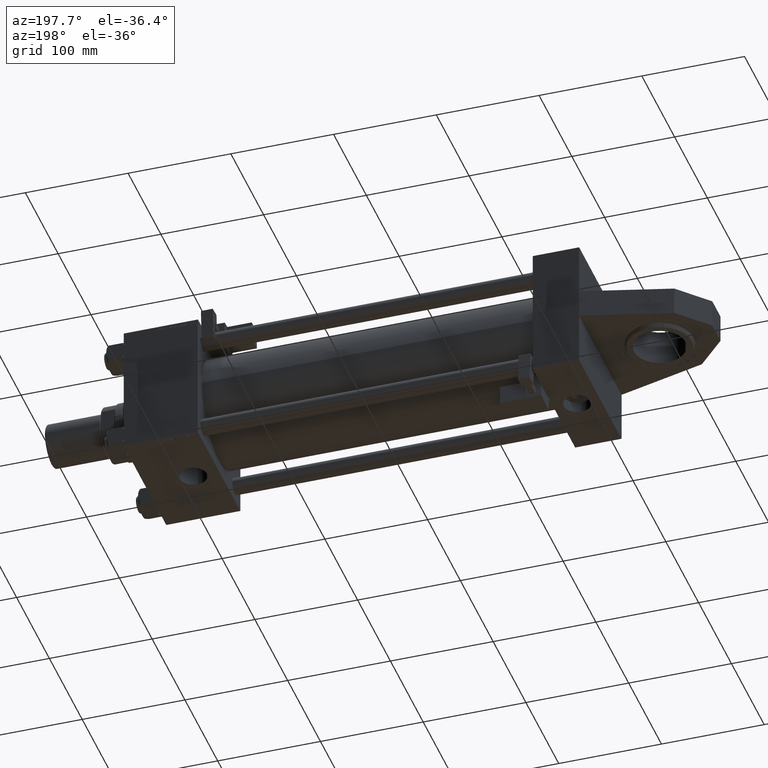
[diagram: clean part render]
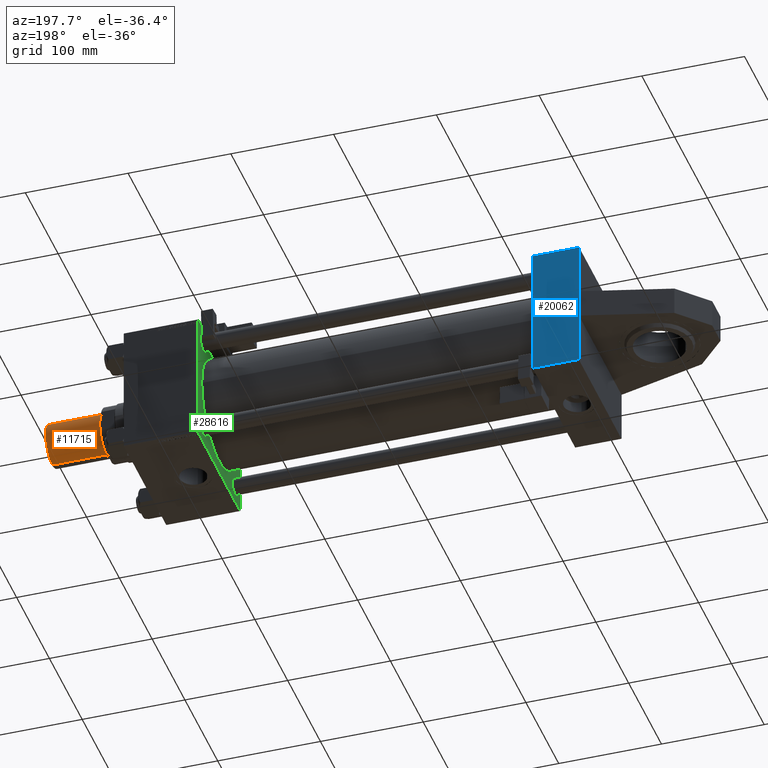
[diagram: same view with three faces highlighted in distinct colors, each labeled with its STEP entity id]
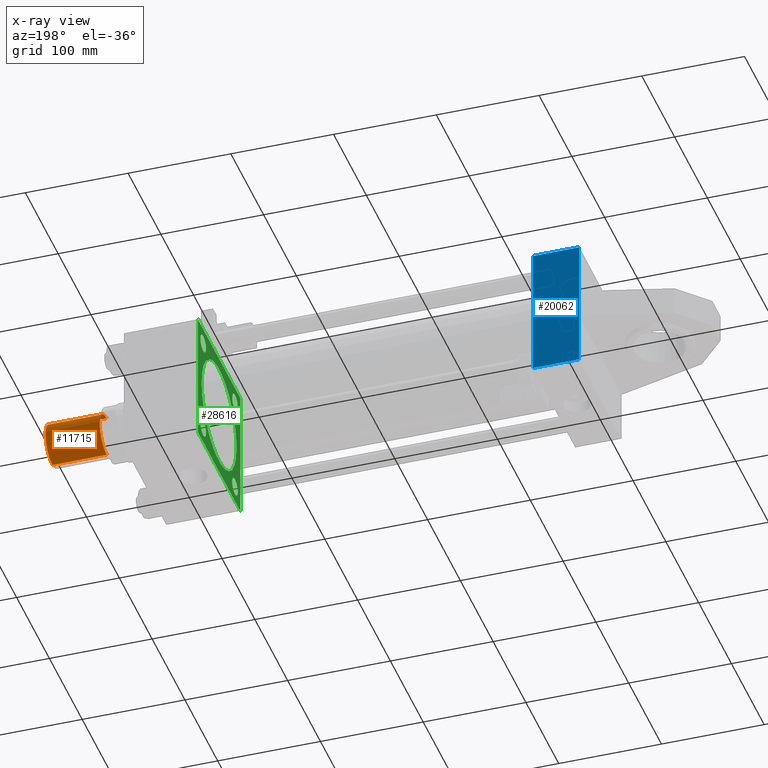
[diagram: x-ray of the same camera — body ghosted, the three highlighted faces saturated]
A machine part, auxiliary view with three faces highlighted in distinct colors.
The next image is the same camera in x-ray (body ghosted, the three faces saturated) — at least one of them is partly hidden behind the body in this view.
Their STEP definitions:

[orange] entity #11715 — the highlighted cylindrical surface (edge-blend (fillet) strip) has radius 21 mm, axis along (1, -0, -0).
#2862 = LINE ( 'NONE', #53823, #28830 ) ;
#5984 = DIRECTION ( 'NONE',  ( 0.000000000000000000, 0.000000000000000000, 1.000000000000000000 ) ) ;
#6260 = DIRECTION ( 'NONE',  ( 1.000000000000000000, 0.000000000000000000, 0.000000000000000000 ) ) ;
#10566 = ORIENTED_EDGE ( 'NONE', *, *, #54041, .F. ) ;
#11645 = ORIENTED_EDGE ( 'NONE', *, *, #49809, .F. ) ;
#11715 = ADVANCED_FACE ( 'NONE', ( #22678 ), #14840, .T. ) ;
#14840 = CYLINDRICAL_SURFACE ( 'NONE', #20367, 21.00000000000000000 ) ;
#15377 = CARTESIAN_POINT ( 'NONE',  ( 21.00000000000000000, 2.571758278209441661E-15, 53.50000000000000000 ) ) ;
#19028 = CARTESIAN_POINT ( 'NONE',  ( 0.000000000000000000, 0.000000000000000000, 53.50000000000000000 ) ) ;
#20367 = AXIS2_PLACEMENT_3D ( 'NONE', #19028, #31881, #35529 ) ;
#21229 = DIRECTION ( 'NONE',  ( 1.000000000000000000, 0.000000000000000000, 0.000000000000000000 ) ) ;
#22678 = FACE_OUTER_BOUND ( 'NONE', #35288, .T. ) ;
#22989 = EDGE_CURVE ( 'NONE', #28365, #42734, #25447, .T. ) ;
#23627 = ORIENTED_EDGE ( 'NONE', *, *, #22989, .T. ) ;
#24865 = DIRECTION ( 'NONE',  ( -0.000000000000000000, -0.000000000000000000, 1.000000000000000000 ) ) ;
#25447 = CIRCLE ( 'NONE', #31636, 21.00000000000000000 ) ;
#27929 = EDGE_CURVE ( 'NONE', #38815, #28365, #52485, .T. ) ;
#28365 = VERTEX_POINT ( 'NONE', #45379 ) ;
#28433 = VERTEX_POINT ( 'NONE', #54355 ) ;
#28830 = VECTOR ( 'NONE', #33071, 1000.000000000000000 ) ;
#30092 = VECTOR ( 'NONE', #51379, 1000.000000000000000 ) ;
#31636 = AXIS2_PLACEMENT_3D ( 'NONE', #41915, #24865, #21229 ) ;
#31881 = DIRECTION ( 'NONE',  ( -0.000000000000000000, -0.000000000000000000, -1.000000000000000000 ) ) ;
#33071 = DIRECTION ( 'NONE',  ( -0.000000000000000000, -0.000000000000000000, -1.000000000000000000 ) ) ;
#34286 = CARTESIAN_POINT ( 'NONE',  ( 21.00000000000000000, 2.571758278209441661E-15, 53.50000000000000000 ) ) ;
#35288 = EDGE_LOOP ( 'NONE', ( #10566, #38814, #23627, #11645 ) ) ;
#35529 = DIRECTION ( 'NONE',  ( -1.000000000000000000, 0.000000000000000000, 0.000000000000000000 ) ) ;
#38814 = ORIENTED_EDGE ( 'NONE', *, *, #27929, .T. ) ;
#38815 = VERTEX_POINT ( 'NONE', #15377 ) ;
#39297 = CARTESIAN_POINT ( 'NONE',  ( 0.000000000000000000, 0.000000000000000000, 53.50000000000000000 ) ) ;
#41915 = CARTESIAN_POINT ( 'NONE',  ( 0.000000000000000000, 0.000000000000000000, 0.7999999999999882760 ) ) ;
#42734 = VERTEX_POINT ( 'NONE', #46907 ) ;
#45379 = CARTESIAN_POINT ( 'NONE',  ( 21.00000000000000000, 2.571758278209441661E-15, 0.7999999999999882760 ) ) ;
#46907 = CARTESIAN_POINT ( 'NONE',  ( -21.00000000000000000, 0.000000000000000000, 0.7999999999999882760 ) ) ;
#48527 = AXIS2_PLACEMENT_3D ( 'NONE', #39297, #5984, #6260 ) ;
#49407 = CIRCLE ( 'NONE', #48527, 21.00000000000000000 ) ;
#49809 = EDGE_CURVE ( 'NONE', #28433, #42734, #2862, .T. ) ;
#51379 = DIRECTION ( 'NONE',  ( -0.000000000000000000, -0.000000000000000000, -1.000000000000000000 ) ) ;
#52485 = LINE ( 'NONE', #34286, #30092 ) ;
#53823 = CARTESIAN_POINT ( 'NONE',  ( -21.00000000000000000, 0.000000000000000000, 53.50000000000000000 ) ) ;
#54041 = EDGE_CURVE ( 'NONE', #38815, #28433, #49407, .T. ) ;
#54355 = CARTESIAN_POINT ( 'NONE',  ( -21.00000000000000000, 0.000000000000000000, 53.50000000000000000 ) ) ;

[blue] entity #20062 — the highlighted planar face has unit normal (0, 1, 0).
#98 = DIRECTION ( 'NONE',  ( 0.000000000000000000, 1.067522139062650548E-16, -1.000000000000000000 ) ) ;
#99 = VERTEX_POINT ( 'NONE', #22239 ) ;
#425 = VERTEX_POINT ( 'NONE', #21076 ) ;
#575 = CARTESIAN_POINT ( 'NONE',  ( 45.00000000000000000, 64.49999999999997158, -64.99999999999998579 ) ) ;
#2406 = EDGE_CURVE ( 'NONE', #43380, #22657, #34401, .T. ) ;
#2590 = EDGE_CURVE ( 'NONE', #47584, #99, #52327, .T. ) ;
#2837 = CARTESIAN_POINT ( 'NONE',  ( 0.000000000000000000, 65.00000000000000000, -64.99999999999998579 ) ) ;
#3897 = AXIS2_PLACEMENT_3D ( 'NONE', #9049, #98, #51599 ) ;
#4165 = CARTESIAN_POINT ( 'NONE',  ( 0.000000000000000000, -13.99999999999999822, -65.00000000000000000 ) ) ;
#5695 = ORIENTED_EDGE ( 'NONE', *, *, #31781, .F. ) ;
#5819 = LINE ( 'NONE', #27367, #29354 ) ;
#6583 = VECTOR ( 'NONE', #9778, 1000.000000000000000 ) ;
#8306 = VERTEX_POINT ( 'NONE', #8690 ) ;
#8690 = CARTESIAN_POINT ( 'NONE',  ( 0.000000000000000000, 14.00000000000000000, -65.00000000000000000 ) ) ;
#8785 = DIRECTION ( 'NONE',  ( 1.000000000000000000, 0.000000000000000000, 0.000000000000000000 ) ) ;
#9049 = CARTESIAN_POINT ( 'NONE',  ( 45.00000000000000000, 65.00000000000000000, -64.99999999999998579 ) ) ;
#9778 = DIRECTION ( 'NONE',  ( 0.000000000000000000, -1.000000000000000000, -1.067522139062650425E-16 ) ) ;
#11256 = LINE ( 'NONE', #2837, #12258 ) ;
#12258 = VECTOR ( 'NONE', #45939, 1000.000000000000000 ) ;
#12360 = EDGE_CURVE ( 'NONE', #99, #22657, #21182, .T. ) ;
#12980 = EDGE_CURVE ( 'NONE', #43380, #8306, #5819, .T. ) ;
#13153 = CARTESIAN_POINT ( 'NONE',  ( 0.000000000000000000, 65.00000000000000000, -64.99999999999998579 ) ) ;
#13982 = CARTESIAN_POINT ( 'NONE',  ( 45.00000000000000000, 65.00000000000000000, -64.99999999999998579 ) ) ;
#15909 = ORIENTED_EDGE ( 'NONE', *, *, #2406, .F. ) ;
#17733 = PLANE ( 'NONE',  #3897 ) ;
#18157 = VECTOR ( 'NONE', #8785, 1000.000000000000000 ) ;
#19991 = EDGE_CURVE ( 'NONE', #425, #47584, #28391, .T. ) ;
#20062 = ADVANCED_FACE ( 'NONE', ( #38986 ), #17733, .T. ) ;
#21076 = CARTESIAN_POINT ( 'NONE',  ( 0.000000000000000000, 64.49999999999997158, -64.99999999999998579 ) ) ;
#21182 = LINE ( 'NONE', #39051, #38265 ) ;
#22239 = CARTESIAN_POINT ( 'NONE',  ( 45.00000000000000000, -64.49999999999994316, -65.00000000000000000 ) ) ;
#22657 = VERTEX_POINT ( 'NONE', #22659 ) ;
#22659 = CARTESIAN_POINT ( 'NONE',  ( 0.000000000000000000, -64.49999999999994316, -65.00000000000000000 ) ) ;
#22898 = DIRECTION ( 'NONE',  ( 0.000000000000000000, 1.000000000000000000, 0.000000000000000000 ) ) ;
#27367 = CARTESIAN_POINT ( 'NONE',  ( 0.000000000000000000, -14.00000000000000000, -65.00000000000000000 ) ) ;
#28391 = LINE ( 'NONE', #28657, #18157 ) ;
#28657 = CARTESIAN_POINT ( 'NONE',  ( 45.00000000000000000, 64.49999999999997158, -64.99999999999998579 ) ) ;
#29354 = VECTOR ( 'NONE', #22898, 1000.000000000000000 ) ;
#29832 = VECTOR ( 'NONE', #30479, 1000.000000000000000 ) ;
#30479 = DIRECTION ( 'NONE',  ( 0.000000000000000000, -1.000000000000000000, -1.067522139062650425E-16 ) ) ;
#31781 = EDGE_CURVE ( 'NONE', #425, #8306, #11256, .T. ) ;
#34401 = LINE ( 'NONE', #13153, #29832 ) ;
#34719 = ORIENTED_EDGE ( 'NONE', *, *, #19991, .T. ) ;
#35176 = ORIENTED_EDGE ( 'NONE', *, *, #2590, .T. ) ;
#36738 = ORIENTED_EDGE ( 'NONE', *, *, #12360, .T. ) ;
#38265 = VECTOR ( 'NONE', #40149, 1000.000000000000000 ) ;
#38986 = FACE_OUTER_BOUND ( 'NONE', #39802, .T. ) ;
#39051 = CARTESIAN_POINT ( 'NONE',  ( 0.000000000000000000, -64.49999999999994316, -65.00000000000000000 ) ) ;
#39802 = EDGE_LOOP ( 'NONE', ( #5695, #34719, #35176, #36738, #15909, #53960 ) ) ;
#40149 = DIRECTION ( 'NONE',  ( -1.000000000000000000, 0.000000000000000000, 0.000000000000000000 ) ) ;
#43380 = VERTEX_POINT ( 'NONE', #4165 ) ;
#45939 = DIRECTION ( 'NONE',  ( 0.000000000000000000, -1.000000000000000000, -1.067522139062650425E-16 ) ) ;
#47584 = VERTEX_POINT ( 'NONE', #575 ) ;
#51599 = DIRECTION ( 'NONE',  ( 0.000000000000000000, 1.000000000000000000, 1.067522139062650548E-16 ) ) ;
#52327 = LINE ( 'NONE', #13982, #6583 ) ;
#53960 = ORIENTED_EDGE ( 'NONE', *, *, #12980, .T. ) ;

[green] entity #28616 — the highlighted planar face has unit normal (-1, 0, 0).
#79 = DIRECTION ( 'NONE',  ( 1.000000000000000000, -0.000000000000000000, 0.000000000000000000 ) ) ;
#485 = VECTOR ( 'NONE', #37633, 1000.000000000000000 ) ;
#505 = DIRECTION ( 'NONE',  ( 1.000000000000000000, -0.000000000000000000, 0.000000000000000000 ) ) ;
#658 = LINE ( 'NONE', #4858, #41897 ) ;
#848 = PLANE ( 'NONE',  #30135 ) ;
#1364 = CARTESIAN_POINT ( 'NONE',  ( 371.0000000000000000, -64.74999999999816680, -64.75000000000176215 ) ) ;
#1368 = CARTESIAN_POINT ( 'NONE',  ( 371.0000000000000000, 48.45000000000000995, -39.94999999999995310 ) ) ;
#1966 = VERTEX_POINT ( 'NONE', #55378 ) ;
#2070 = VERTEX_POINT ( 'NONE', #26242 ) ;
#2149 = CARTESIAN_POINT ( 'NONE',  ( 371.0000000000000000, 65.00000000000002842, 65.00000000000001421 ) ) ;
#2324 = VERTEX_POINT ( 'NONE', #49632 ) ;
#2623 = EDGE_LOOP ( 'NONE', ( #44089, #22794 ) ) ;
#3161 = ORIENTED_EDGE ( 'NONE', *, *, #31093, .F. ) ;
#3511 = DIRECTION ( 'NONE',  ( 0.000000000000000000, 0.000000000000000000, 1.000000000000000000 ) ) ;
#4018 = ORIENTED_EDGE ( 'NONE', *, *, #40375, .T. ) ;
#4065 = VECTOR ( 'NONE', #6118, 1000.000000000000000 ) ;
#4858 = CARTESIAN_POINT ( 'NONE',  ( 371.0000000000000000, 65.00000000000002842, -64.99999999999998579 ) ) ;
#5518 = LINE ( 'NONE', #2149, #49791 ) ;
#5728 = DIRECTION ( 'NONE',  ( 1.000000000000000000, 0.000000000000000000, 0.000000000000000000 ) ) ;
#6118 = DIRECTION ( 'NONE',  ( 0.000000000000000000, -0.7071067811865672237, 0.7071067811865279218 ) ) ;
#6263 = CIRCLE ( 'NONE', #45614, 53.00000000000000711 ) ;
#6677 = CARTESIAN_POINT ( 'NONE',  ( 371.0000000000000000, -64.99999999999998579, -64.49999999999997158 ) ) ;
#6906 = EDGE_CURVE ( 'NONE', #19677, #53902, #27108, .T. ) ;
#6961 = AXIS2_PLACEMENT_3D ( 'NONE', #28097, #31450, #44602 ) ;
#7134 = LINE ( 'NONE', #41252, #8234 ) ;
#7411 = DIRECTION ( 'NONE',  ( 0.000000000000000000, 0.7071067811865474617, -0.7071067811865474617 ) ) ;
#7910 = DIRECTION ( 'NONE',  ( 0.000000000000000000, 0.000000000000000000, 1.000000000000000000 ) ) ;
#7914 = DIRECTION ( 'NONE',  ( -0.000000000000000000, -0.7071067811865474617, -0.7071067811865474617 ) ) ;
#8164 = VERTEX_POINT ( 'NONE', #49848 ) ;
#8234 = VECTOR ( 'NONE', #7411, 1000.000000000000114 ) ;
#8705 = DIRECTION ( 'NONE',  ( 0.000000000000000000, 0.000000000000000000, 1.000000000000000000 ) ) ;
#10518 = CARTESIAN_POINT ( 'NONE',  ( 371.0000000000000000, -48.45000000000001705, -48.45000000000001705 ) ) ;
#10854 = CARTESIAN_POINT ( 'NONE',  ( 371.0000000000000000, 48.45000000000000995, -48.45000000000001705 ) ) ;
#11004 = CARTESIAN_POINT ( 'NONE',  ( 371.0000000000000000, -48.45000000000001705, -39.94999999999995310 ) ) ;
#11820 = AXIS2_PLACEMENT_3D ( 'NONE', #41842, #41558, #3511 ) ;
#11940 = LINE ( 'NONE', #12497, #52440 ) ;
#12057 = AXIS2_PLACEMENT_3D ( 'NONE', #38694, #79, #38966 ) ;
#12497 = CARTESIAN_POINT ( 'NONE',  ( 371.0000000000000000, 65.00000000000002842, 65.00000000000001421 ) ) ;
#13008 = AXIS2_PLACEMENT_3D ( 'NONE', #50539, #24785, #16393 ) ;
#14111 = CIRCLE ( 'NONE', #30206, 8.500000000000063949 ) ;
#14484 = VERTEX_POINT ( 'NONE', #46741 ) ;
#14999 = EDGE_CURVE ( 'NONE', #16043, #14484, #45750, .T. ) ;
#16043 = VERTEX_POINT ( 'NONE', #42691 ) ;
#16236 = VERTEX_POINT ( 'NONE', #16342 ) ;
#16305 = CARTESIAN_POINT ( 'NONE',  ( 371.0000000000000000, -2.602085213965210642E-15, 0.000000000000000000 ) ) ;
#16342 = CARTESIAN_POINT ( 'NONE',  ( 371.0000000000000000, -48.44999999999998153, 39.94999999999992468 ) ) ;
#16393 = DIRECTION ( 'NONE',  ( 0.000000000000000000, 0.000000000000000000, 1.000000000000000000 ) ) ;
#16560 = CARTESIAN_POINT ( 'NONE',  ( 371.0000000000000000, 3.888542821515762466E-15, -53.00000000000000711 ) ) ;
#17244 = AXIS2_PLACEMENT_3D ( 'NONE', #42768, #505, #21517 ) ;
#17635 = EDGE_LOOP ( 'NONE', ( #43441, #49090 ) ) ;
#17925 = CARTESIAN_POINT ( 'NONE',  ( 371.0000000000000000, 0.000000000000000000, 0.000000000000000000 ) ) ;
#18521 = CARTESIAN_POINT ( 'NONE',  ( 371.0000000000000000, 65.00000000000002842, -64.49999999999992895 ) ) ;
#19411 = EDGE_CURVE ( 'NONE', #16236, #1966, #48518, .T. ) ;
#19677 = VERTEX_POINT ( 'NONE', #20899 ) ;
#19803 = ORIENTED_EDGE ( 'NONE', *, *, #29658, .T. ) ;
#20701 = ORIENTED_EDGE ( 'NONE', *, *, #27768, .T. ) ;
#20899 = CARTESIAN_POINT ( 'NONE',  ( 371.0000000000000000, -64.49999999999991473, -65.00000000000001421 ) ) ;
#21151 = LINE ( 'NONE', #50256, #485 ) ;
#21342 = EDGE_CURVE ( 'NONE', #50082, #44919, #50999, .T. ) ;
#21411 = CARTESIAN_POINT ( 'NONE',  ( 371.0000000000000000, -64.50000000000002842, 65.00000000000000000 ) ) ;
#21517 = DIRECTION ( 'NONE',  ( 0.000000000000000000, 0.000000000000000000, 1.000000000000000000 ) ) ;
#21982 = VERTEX_POINT ( 'NONE', #16560 ) ;
#22132 = FACE_OUTER_BOUND ( 'NONE', #55228, .T. ) ;
#22599 = DIRECTION ( 'NONE',  ( 0.000000000000000000, -1.000000000000000000, -1.067522139062650425E-16 ) ) ;
#22794 = ORIENTED_EDGE ( 'NONE', *, *, #33415, .T. ) ;
#23061 = CIRCLE ( 'NONE', #6961, 8.499999999999952038 ) ;
#23116 = VERTEX_POINT ( 'NONE', #23966 ) ;
#23597 = DIRECTION ( 'NONE',  ( 0.000000000000000000, 0.000000000000000000, -1.000000000000000000 ) ) ;
#23600 = EDGE_CURVE ( 'NONE', #23116, #49680, #44223, .T. ) ;
#23645 = VERTEX_POINT ( 'NONE', #48682 ) ;
#23966 = CARTESIAN_POINT ( 'NONE',  ( 371.0000000000000000, -48.45000000000001705, -56.95000000000007390 ) ) ;
#24785 = DIRECTION ( 'NONE',  ( 1.000000000000000000, -0.000000000000000000, 0.000000000000000000 ) ) ;
#25119 = EDGE_CURVE ( 'NONE', #1966, #16236, #47841, .T. ) ;
#25223 = EDGE_CURVE ( 'NONE', #50082, #53902, #21151, .T. ) ;
#26053 = FACE_BOUND ( 'NONE', #28353, .T. ) ;
#26242 = CARTESIAN_POINT ( 'NONE',  ( 371.0000000000000000, -2.602085213965210642E-15, 53.00000000000000711 ) ) ;
#26332 = FACE_BOUND ( 'NONE', #44924, .T. ) ;
#26579 = AXIS2_PLACEMENT_3D ( 'NONE', #10854, #52846, #48364 ) ;
#27108 = LINE ( 'NONE', #1364, #4065 ) ;
#27492 = ORIENTED_EDGE ( 'NONE', *, *, #45049, .T. ) ;
#27768 = EDGE_CURVE ( 'NONE', #2324, #47202, #11940, .T. ) ;
#27970 = DIRECTION ( 'NONE',  ( -0.000000000000000000, 0.000000000000000000, 1.000000000000000000 ) ) ;
#28003 = EDGE_CURVE ( 'NONE', #2070, #21982, #46197, .T. ) ;
#28062 = VECTOR ( 'NONE', #43683, 1000.000000000000114 ) ;
#28097 = CARTESIAN_POINT ( 'NONE',  ( 371.0000000000000000, 48.45000000000000995, 48.45000000000001705 ) ) ;
#28353 = EDGE_LOOP ( 'NONE', ( #35705, #19803 ) ) ;
#28613 = DIRECTION ( 'NONE',  ( 1.000000000000000000, 0.000000000000000000, 0.000000000000000000 ) ) ;
#28616 = ADVANCED_FACE ( 'NONE', ( #30245, #34709, #26053, #26332, #43382, #22132 ), #848, .T. ) ;
#28995 = DIRECTION ( 'NONE',  ( 0.000000000000000000, 0.000000000000000000, -1.000000000000000000 ) ) ;
#29222 = AXIS2_PLACEMENT_3D ( 'NONE', #44325, #5728, #53314 ) ;
#29658 = EDGE_CURVE ( 'NONE', #30341, #53713, #50729, .T. ) ;
#30135 = AXIS2_PLACEMENT_3D ( 'NONE', #17925, #34974, #27970 ) ;
#30206 = AXIS2_PLACEMENT_3D ( 'NONE', #10518, #36243, #7910 ) ;
#30245 = FACE_BOUND ( 'NONE', #17635, .T. ) ;
#30341 = VERTEX_POINT ( 'NONE', #50665 ) ;
#31093 = EDGE_CURVE ( 'NONE', #8164, #44919, #5518, .T. ) ;
#31450 = DIRECTION ( 'NONE',  ( 1.000000000000000000, -0.000000000000000000, 0.000000000000000000 ) ) ;
#33101 = EDGE_LOOP ( 'NONE', ( #33212, #27492 ) ) ;
#33212 = ORIENTED_EDGE ( 'NONE', *, *, #28003, .T. ) ;
#33333 = CIRCLE ( 'NONE', #40488, 8.500000000000063949 ) ;
#33415 = EDGE_CURVE ( 'NONE', #14484, #16043, #23061, .T. ) ;
#33606 = CARTESIAN_POINT ( 'NONE',  ( 371.0000000000000000, 48.45000000000000995, -48.45000000000001705 ) ) ;
#33882 = ORIENTED_EDGE ( 'NONE', *, *, #49483, .T. ) ;
#34190 = LINE ( 'NONE', #37837, #43907 ) ;
#34209 = ORIENTED_EDGE ( 'NONE', *, *, #38690, .T. ) ;
#34709 = FACE_BOUND ( 'NONE', #2623, .T. ) ;
#34974 = DIRECTION ( 'NONE',  ( -1.000000000000000000, 0.000000000000000000, -0.000000000000000000 ) ) ;
#35705 = ORIENTED_EDGE ( 'NONE', *, *, #50912, .T. ) ;
#36243 = DIRECTION ( 'NONE',  ( 1.000000000000000000, -0.000000000000000000, 0.000000000000000000 ) ) ;
#36660 = CARTESIAN_POINT ( 'NONE',  ( 371.0000000000000000, -64.99999999999998579, 64.50000000000005684 ) ) ;
#37633 = DIRECTION ( 'NONE',  ( 0.000000000000000000, 0.000000000000000000, -1.000000000000000000 ) ) ;
#37837 = CARTESIAN_POINT ( 'NONE',  ( 371.0000000000000000, 64.74999999999997158, -64.74999999999997158 ) ) ;
#38450 = DIRECTION ( 'NONE',  ( 0.000000000000000000, -1.000000000000000000, -2.135044278125300850E-16 ) ) ;
#38657 = CARTESIAN_POINT ( 'NONE',  ( 371.0000000000000000, -64.74999999999913314, 64.75000000000093792 ) ) ;
#38690 = EDGE_CURVE ( 'NONE', #47202, #23645, #34190, .T. ) ;
#38694 = CARTESIAN_POINT ( 'NONE',  ( 371.0000000000000000, -48.45000000000001705, -48.45000000000001705 ) ) ;
#38966 = DIRECTION ( 'NONE',  ( 0.000000000000000000, 0.000000000000000000, 1.000000000000000000 ) ) ;
#39172 = EDGE_CURVE ( 'NONE', #23645, #19677, #658, .T. ) ;
#39339 = ORIENTED_EDGE ( 'NONE', *, *, #21342, .T. ) ;
#40375 = EDGE_CURVE ( 'NONE', #49680, #23116, #14111, .T. ) ;
#40488 = AXIS2_PLACEMENT_3D ( 'NONE', #33606, #46763, #8705 ) ;
#41252 = CARTESIAN_POINT ( 'NONE',  ( 371.0000000000000000, 64.74999999999998579, 64.74999999999998579 ) ) ;
#41545 = ORIENTED_EDGE ( 'NONE', *, *, #23600, .T. ) ;
#41558 = DIRECTION ( 'NONE',  ( 1.000000000000000000, -0.000000000000000000, 0.000000000000000000 ) ) ;
#41842 = CARTESIAN_POINT ( 'NONE',  ( 371.0000000000000000, 48.45000000000000995, 48.45000000000001705 ) ) ;
#41897 = VECTOR ( 'NONE', #38450, 1000.000000000000000 ) ;
#42691 = CARTESIAN_POINT ( 'NONE',  ( 371.0000000000000000, 48.45000000000000995, 56.94999999999996732 ) ) ;
#42768 = CARTESIAN_POINT ( 'NONE',  ( 371.0000000000000000, -48.44999999999998153, 48.44999999999998863 ) ) ;
#43382 = FACE_BOUND ( 'NONE', #33101, .T. ) ;
#43441 = ORIENTED_EDGE ( 'NONE', *, *, #25119, .T. ) ;
#43683 = DIRECTION ( 'NONE',  ( -0.000000000000000000, 0.7071067811865573427, 0.7071067811865376918 ) ) ;
#43907 = VECTOR ( 'NONE', #7914, 1000.000000000000114 ) ;
#44089 = ORIENTED_EDGE ( 'NONE', *, *, #14999, .T. ) ;
#44223 = CIRCLE ( 'NONE', #12057, 8.500000000000063949 ) ;
#44325 = CARTESIAN_POINT ( 'NONE',  ( 371.0000000000000000, -2.602085213965210642E-15, 0.000000000000000000 ) ) ;
#44602 = DIRECTION ( 'NONE',  ( 0.000000000000000000, 0.000000000000000000, 1.000000000000000000 ) ) ;
#44919 = VERTEX_POINT ( 'NONE', #21411 ) ;
#44924 = EDGE_LOOP ( 'NONE', ( #4018, #41545 ) ) ;
#45049 = EDGE_CURVE ( 'NONE', #21982, #2070, #6263, .T. ) ;
#45614 = AXIS2_PLACEMENT_3D ( 'NONE', #16305, #28613, #23597 ) ;
#45750 = CIRCLE ( 'NONE', #11820, 8.499999999999952038 ) ;
#46197 = CIRCLE ( 'NONE', #29222, 53.00000000000000711 ) ;
#46741 = CARTESIAN_POINT ( 'NONE',  ( 371.0000000000000000, 48.45000000000000995, 39.95000000000005969 ) ) ;
#46763 = DIRECTION ( 'NONE',  ( 1.000000000000000000, -0.000000000000000000, 0.000000000000000000 ) ) ;
#47202 = VERTEX_POINT ( 'NONE', #18521 ) ;
#47841 = CIRCLE ( 'NONE', #13008, 8.500000000000063949 ) ;
#48364 = DIRECTION ( 'NONE',  ( 0.000000000000000000, 0.000000000000000000, 1.000000000000000000 ) ) ;
#48518 = CIRCLE ( 'NONE', #17244, 8.500000000000063949 ) ;
#48682 = CARTESIAN_POINT ( 'NONE',  ( 371.0000000000000000, 64.49999999999997158, -64.99999999999998579 ) ) ;
#48950 = ORIENTED_EDGE ( 'NONE', *, *, #39172, .T. ) ;
#49090 = ORIENTED_EDGE ( 'NONE', *, *, #19411, .T. ) ;
#49483 = EDGE_CURVE ( 'NONE', #8164, #2324, #7134, .T. ) ;
#49632 = CARTESIAN_POINT ( 'NONE',  ( 371.0000000000000000, 65.00000000000002842, 64.49999999999995737 ) ) ;
#49680 = VERTEX_POINT ( 'NONE', #11004 ) ;
#49791 = VECTOR ( 'NONE', #22599, 1000.000000000000000 ) ;
#49848 = CARTESIAN_POINT ( 'NONE',  ( 371.0000000000000000, 64.49999999999997158, 65.00000000000001421 ) ) ;
#50082 = VERTEX_POINT ( 'NONE', #36660 ) ;
#50156 = ORIENTED_EDGE ( 'NONE', *, *, #25223, .F. ) ;
#50256 = CARTESIAN_POINT ( 'NONE',  ( 371.0000000000000000, -64.99999999999998579, 65.00000000000000000 ) ) ;
#50539 = CARTESIAN_POINT ( 'NONE',  ( 371.0000000000000000, -48.44999999999998153, 48.44999999999998863 ) ) ;
#50665 = CARTESIAN_POINT ( 'NONE',  ( 371.0000000000000000, 48.45000000000000995, -56.95000000000007390 ) ) ;
#50729 = CIRCLE ( 'NONE', #26579, 8.500000000000063949 ) ;
#50912 = EDGE_CURVE ( 'NONE', #53713, #30341, #33333, .T. ) ;
#50999 = LINE ( 'NONE', #38657, #28062 ) ;
#52197 = ORIENTED_EDGE ( 'NONE', *, *, #6906, .T. ) ;
#52440 = VECTOR ( 'NONE', #28995, 1000.000000000000000 ) ;
#52846 = DIRECTION ( 'NONE',  ( 1.000000000000000000, -0.000000000000000000, 0.000000000000000000 ) ) ;
#53314 = DIRECTION ( 'NONE',  ( 0.000000000000000000, 0.000000000000000000, -1.000000000000000000 ) ) ;
#53713 = VERTEX_POINT ( 'NONE', #1368 ) ;
#53902 = VERTEX_POINT ( 'NONE', #6677 ) ;
#55228 = EDGE_LOOP ( 'NONE', ( #48950, #52197, #50156, #39339, #3161, #33882, #20701, #34209 ) ) ;
#55378 = CARTESIAN_POINT ( 'NONE',  ( 371.0000000000000000, -48.44999999999998153, 56.95000000000005258 ) ) ;